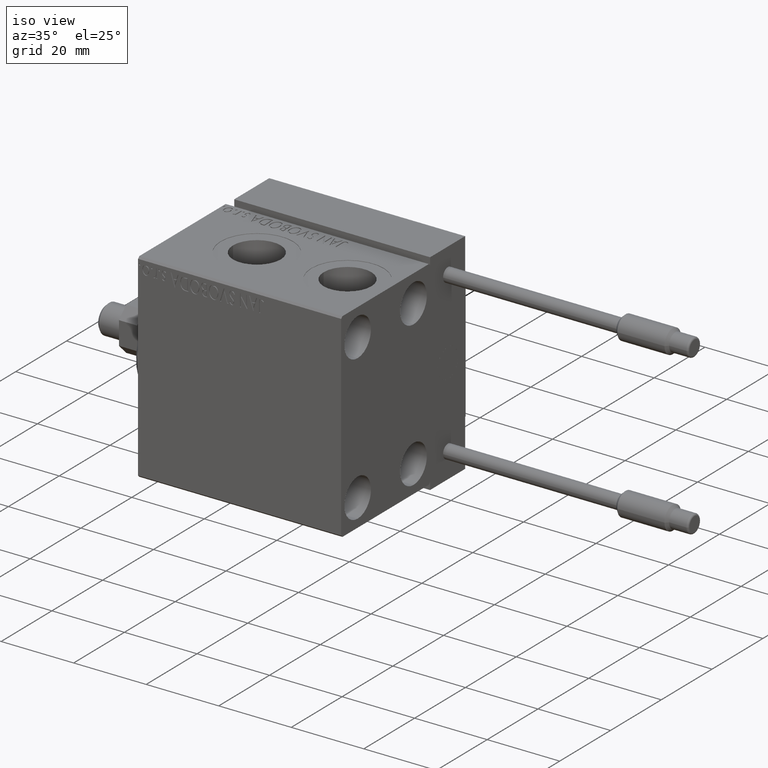
[diagram: clean part render]
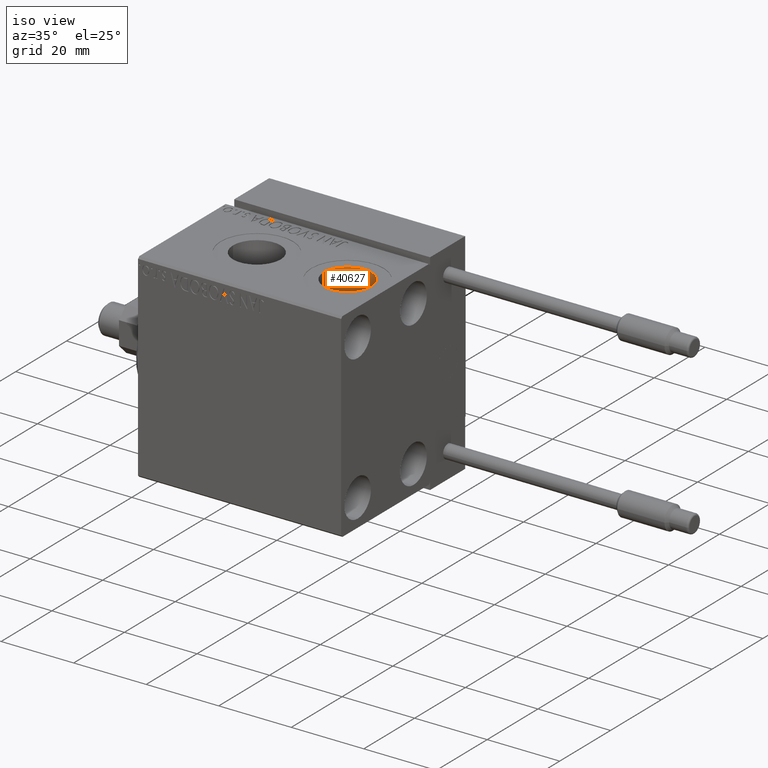
[diagram: same view with one face highlighted and labeled with its STEP entity id]
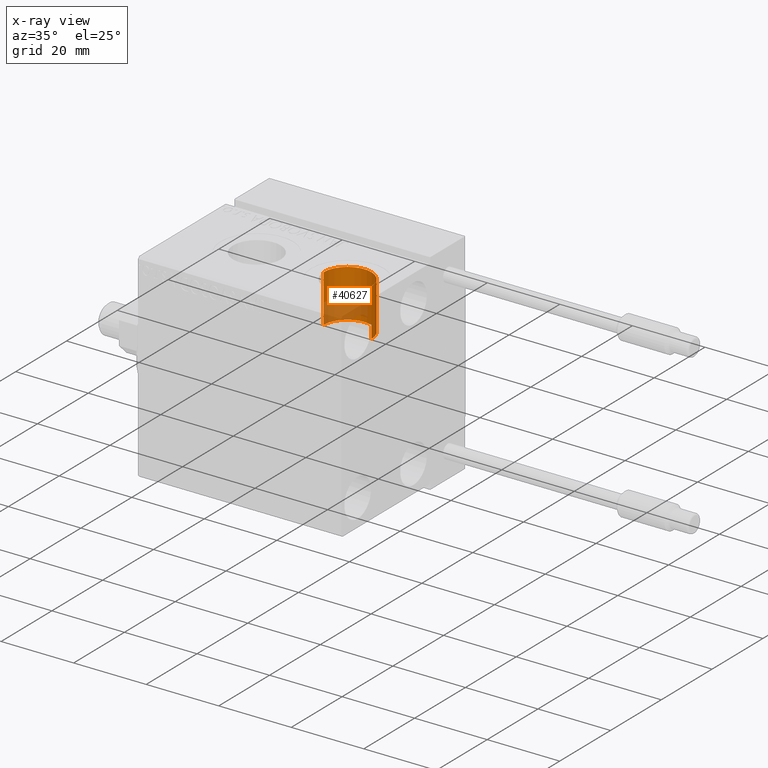
[diagram: x-ray of the same camera — body ghosted, the highlighted face saturated]
A machine part, iso view. The second image highlights one B-rep face of the part: STEP entity #40627.
The next image is the same camera in x-ray: the body ghosted, the highlighted face saturated — about 33% of this face is hidden behind the body in this view.
In plain terms, the highlighted cylindrical surface (edge-blend (fillet) strip) has radius 6.58 mm, axis along (0, 0, 1).
Its self-contained STEP definition (entity closure, byte-faithful):
#605 = AXIS2_PLACEMENT_3D ( 'NONE', #32642, #13024, #39912 ) ;
#737 = EDGE_LOOP ( 'NONE', ( #33362, #23869, #1603, #40865 ) ) ;
#1603 = ORIENTED_EDGE ( 'NONE', *, *, #20373, .T. ) ;
#1983 = VECTOR ( 'NONE', #37584, 1000.000000000000000 ) ;
#4558 = EDGE_CURVE ( 'NONE', #35667, #40946, #12154, .T. ) ;
#6005 = CARTESIAN_POINT ( 'NONE',  ( 38.91999999999999460, -4.646170473516720848E-15, 14.24000000000000021 ) ) ;
#6344 = LINE ( 'NONE', #17452, #1983 ) ;
#11068 = DIRECTION ( 'NONE',  ( -0.000000000000000000, -0.000000000000000000, 1.000000000000000000 ) ) ;
#12154 = CIRCLE ( 'NONE', #605, 6.580000000000002736 ) ;
#13024 = DIRECTION ( 'NONE',  ( 0.000000000000000000, 0.000000000000000000, 1.000000000000000000 ) ) ;
#14128 = DIRECTION ( 'NONE',  ( 0.000000000000000000, 0.000000000000000000, 1.000000000000000000 ) ) ;
#14294 = AXIS2_PLACEMENT_3D ( 'NONE', #35335, #11068, #26826 ) ;
#15190 = CYLINDRICAL_SURFACE ( 'NONE', #14294, 6.580000000000002736 ) ;
#17452 = CARTESIAN_POINT ( 'NONE',  ( 52.07999999999999829, -5.451988067355679101E-15, 14.24000000000000021 ) ) ;
#19540 = CARTESIAN_POINT ( 'NONE',  ( 38.91999999999999460, -4.646170473516720848E-15, 27.40000000000000213 ) ) ;
#20214 = CARTESIAN_POINT ( 'NONE',  ( 38.91999999999999460, -4.646170473516720848E-15, 14.24000000000000021 ) ) ;
#20373 = EDGE_CURVE ( 'NONE', #40937, #35667, #6344, .T. ) ;
#22141 = DIRECTION ( 'NONE',  ( 1.000000000000000000, 0.000000000000000000, 0.000000000000000000 ) ) ;
#23869 = ORIENTED_EDGE ( 'NONE', *, *, #37745, .F. ) ;
#26784 = VERTEX_POINT ( 'NONE', #6005 ) ;
#26826 = DIRECTION ( 'NONE',  ( 1.000000000000000000, 0.000000000000000000, 0.000000000000000000 ) ) ;
#31720 = FACE_OUTER_BOUND ( 'NONE', #737, .T. ) ;
#31762 = EDGE_CURVE ( 'NONE', #26784, #40946, #48114, .T. ) ;
#31913 = CARTESIAN_POINT ( 'NONE',  ( 52.07999999999999829, -5.451988067355679101E-15, 27.40000000000000213 ) ) ;
#32642 = CARTESIAN_POINT ( 'NONE',  ( 45.50000000000000000, -5.451988067355679101E-15, 27.40000000000000213 ) ) ;
#33362 = ORIENTED_EDGE ( 'NONE', *, *, #31762, .F. ) ;
#33935 = AXIS2_PLACEMENT_3D ( 'NONE', #49548, #14128, #22141 ) ;
#35335 = CARTESIAN_POINT ( 'NONE',  ( 45.50000000000000000, -5.451988067355679101E-15, 14.24000000000000021 ) ) ;
#35667 = VERTEX_POINT ( 'NONE', #31913 ) ;
#35948 = DIRECTION ( 'NONE',  ( -0.000000000000000000, -0.000000000000000000, 1.000000000000000000 ) ) ;
#37584 = DIRECTION ( 'NONE',  ( -0.000000000000000000, -0.000000000000000000, 1.000000000000000000 ) ) ;
#37745 = EDGE_CURVE ( 'NONE', #40937, #26784, #43080, .T. ) ;
#39912 = DIRECTION ( 'NONE',  ( 1.000000000000000000, 0.000000000000000000, 0.000000000000000000 ) ) ;
#40627 = ADVANCED_FACE ( 'NONE', ( #31720 ), #15190, .F. ) ;
#40865 = ORIENTED_EDGE ( 'NONE', *, *, #4558, .T. ) ;
#40937 = VERTEX_POINT ( 'NONE', #45133 ) ;
#40946 = VERTEX_POINT ( 'NONE', #19540 ) ;
#43080 = CIRCLE ( 'NONE', #33935, 6.580000000000002736 ) ;
#45133 = CARTESIAN_POINT ( 'NONE',  ( 52.07999999999999829, -5.451988067355679101E-15, 14.24000000000000021 ) ) ;
#48114 = LINE ( 'NONE', #20214, #50150 ) ;
#49548 = CARTESIAN_POINT ( 'NONE',  ( 45.50000000000000000, -5.451988067355679101E-15, 14.24000000000000021 ) ) ;
#50150 = VECTOR ( 'NONE', #35948, 1000.000000000000000 ) ;